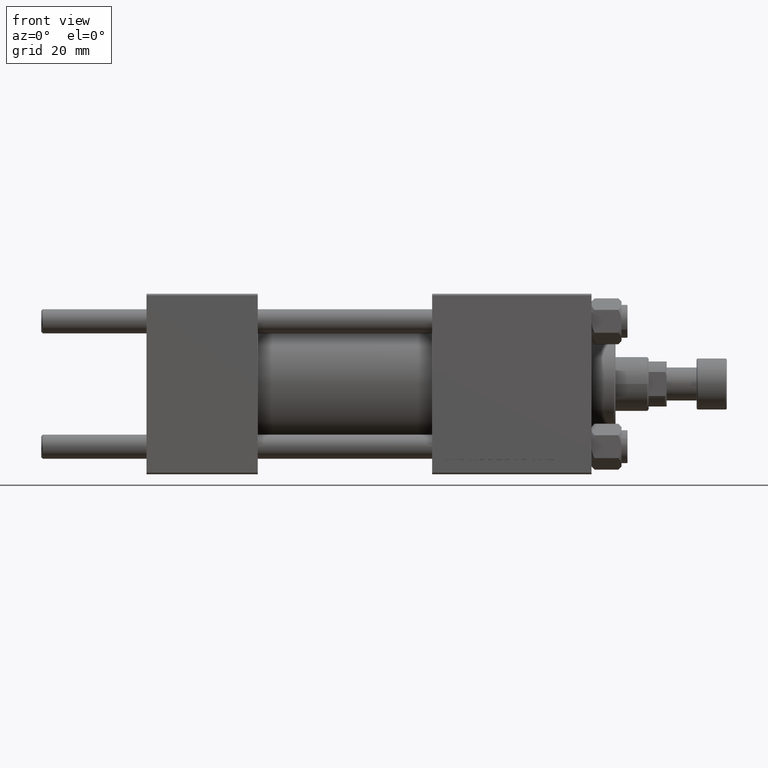
[diagram: clean part render]
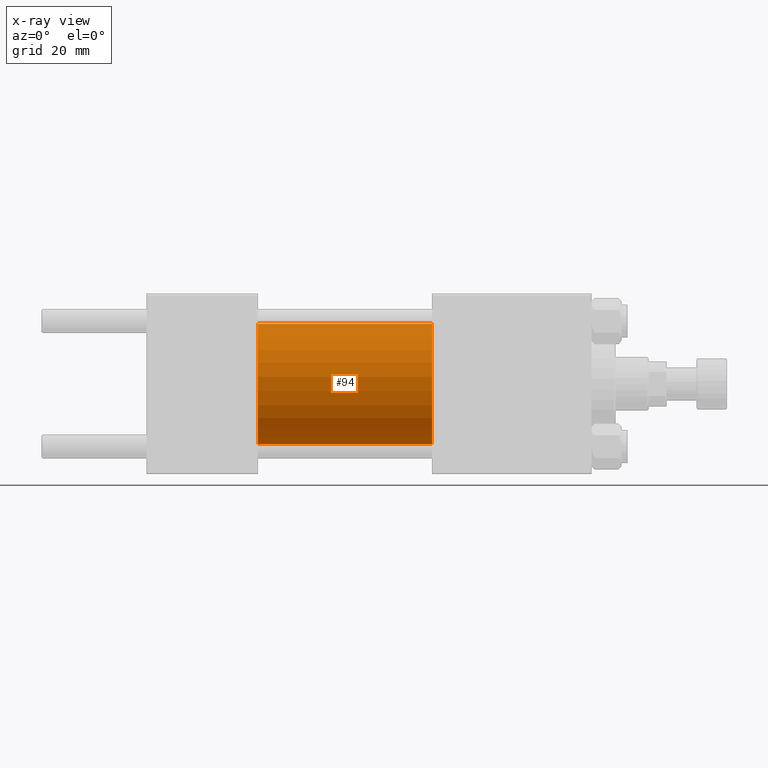
[diagram: x-ray — body ghosted, one internal face saturated and labeled with its STEP entity id]
A machine part, front view, then the same camera in x-ray: the body is ghosted and one INTERNAL B-rep face — a face not visible from any outside direction — is saturated and labeled: STEP entity #94.
In plain terms, the highlighted cylindrical surface (partial cylindrical patch) has radius 20 mm, axis along (-1, -0, -0).
Its self-contained STEP definition (entity closure, byte-faithful):
#94 = ADVANCED_FACE ( 'NONE', ( #44516 ), #24938, .F. ) ;
#694 = VERTEX_POINT ( 'NONE', #13361 ) ;
#2959 = CARTESIAN_POINT ( 'NONE',  ( 95.00000000000000000, 0.000000000000000000, 0.000000000000000000 ) ) ;
#3088 = DIRECTION ( 'NONE',  ( -1.000000000000000000, -0.000000000000000000, -0.000000000000000000 ) ) ;
#6321 = AXIS2_PLACEMENT_3D ( 'NONE', #2959, #49230, #49732 ) ;
#6579 = ORIENTED_EDGE ( 'NONE', *, *, #14025, .F. ) ;
#12039 = ORIENTED_EDGE ( 'NONE', *, *, #37514, .F. ) ;
#13087 = EDGE_LOOP ( 'NONE', ( #20020, #18723, #6579, #12039 ) ) ;
#13361 = CARTESIAN_POINT ( 'NONE',  ( 37.00000000000000000, 2.449293598294706119E-15, -20.00000000000000000 ) ) ;
#13547 = LINE ( 'NONE', #29063, #39428 ) ;
#13604 = CARTESIAN_POINT ( 'NONE',  ( 95.00000000000000000, 2.449293598294706119E-15, -20.00000000000000000 ) ) ;
#14025 = EDGE_CURVE ( 'NONE', #17586, #694, #18618, .T. ) ;
#17586 = VERTEX_POINT ( 'NONE', #21778 ) ;
#17689 = CIRCLE ( 'NONE', #6321, 20.00000000000000000 ) ;
#18618 = CIRCLE ( 'NONE', #23483, 20.00000000000000000 ) ;
#18723 = ORIENTED_EDGE ( 'NONE', *, *, #42984, .T. ) ;
#20020 = ORIENTED_EDGE ( 'NONE', *, *, #42513, .T. ) ;
#21778 = CARTESIAN_POINT ( 'NONE',  ( 37.00000000000000000, 0.000000000000000000, 20.00000000000000000 ) ) ;
#22356 = AXIS2_PLACEMENT_3D ( 'NONE', #48587, #40431, #25451 ) ;
#23483 = AXIS2_PLACEMENT_3D ( 'NONE', #48762, #29678, #44695 ) ;
#24938 = CYLINDRICAL_SURFACE ( 'NONE', #22356, 20.00000000000000000 ) ;
#25451 = DIRECTION ( 'NONE',  ( 0.000000000000000000, 0.000000000000000000, 1.000000000000000000 ) ) ;
#28447 = VERTEX_POINT ( 'NONE', #13604 ) ;
#29063 = CARTESIAN_POINT ( 'NONE',  ( 95.00000000000000000, 0.000000000000000000, 20.00000000000000000 ) ) ;
#29678 = DIRECTION ( 'NONE',  ( 1.000000000000000000, 0.000000000000000000, 0.000000000000000000 ) ) ;
#33849 = LINE ( 'NONE', #37663, #49338 ) ;
#35126 = CARTESIAN_POINT ( 'NONE',  ( 95.00000000000000000, 0.000000000000000000, 20.00000000000000000 ) ) ;
#36909 = VERTEX_POINT ( 'NONE', #35126 ) ;
#37514 = EDGE_CURVE ( 'NONE', #36909, #17586, #13547, .T. ) ;
#37663 = CARTESIAN_POINT ( 'NONE',  ( 95.00000000000000000, 2.449293598294706119E-15, -20.00000000000000000 ) ) ;
#39428 = VECTOR ( 'NONE', #48137, 1000.000000000000000 ) ;
#40431 = DIRECTION ( 'NONE',  ( -1.000000000000000000, -0.000000000000000000, -0.000000000000000000 ) ) ;
#42513 = EDGE_CURVE ( 'NONE', #36909, #28447, #17689, .T. ) ;
#42984 = EDGE_CURVE ( 'NONE', #28447, #694, #33849, .T. ) ;
#44516 = FACE_OUTER_BOUND ( 'NONE', #13087, .T. ) ;
#44695 = DIRECTION ( 'NONE',  ( 0.000000000000000000, 0.000000000000000000, -1.000000000000000000 ) ) ;
#48137 = DIRECTION ( 'NONE',  ( -1.000000000000000000, -0.000000000000000000, -0.000000000000000000 ) ) ;
#48587 = CARTESIAN_POINT ( 'NONE',  ( 95.00000000000000000, 0.000000000000000000, 0.000000000000000000 ) ) ;
#48762 = CARTESIAN_POINT ( 'NONE',  ( 37.00000000000000000, 0.000000000000000000, 0.000000000000000000 ) ) ;
#49230 = DIRECTION ( 'NONE',  ( 1.000000000000000000, 0.000000000000000000, 0.000000000000000000 ) ) ;
#49338 = VECTOR ( 'NONE', #3088, 1000.000000000000000 ) ;
#49732 = DIRECTION ( 'NONE',  ( 0.000000000000000000, 0.000000000000000000, -1.000000000000000000 ) ) ;